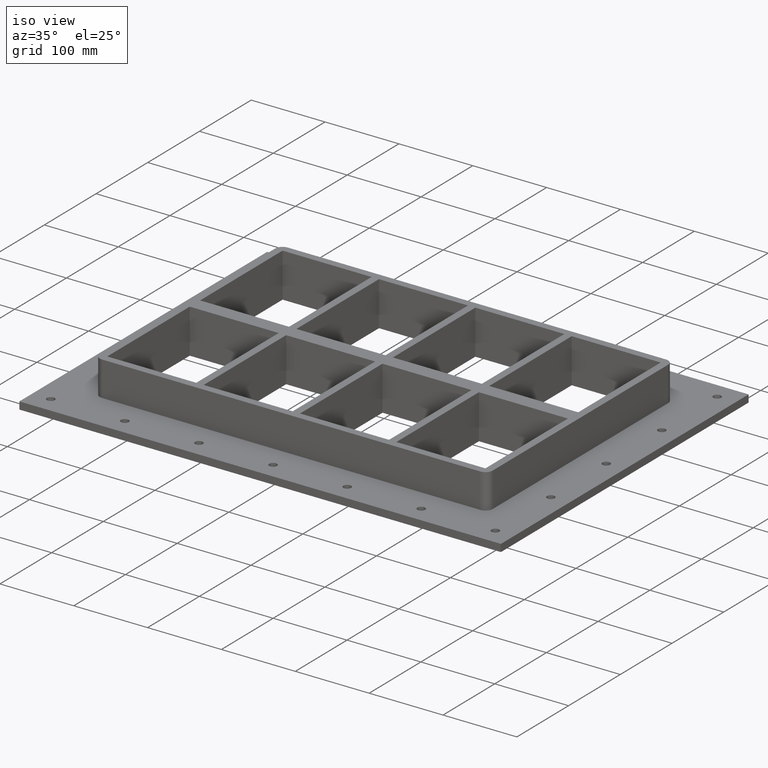
[diagram: clean part render]
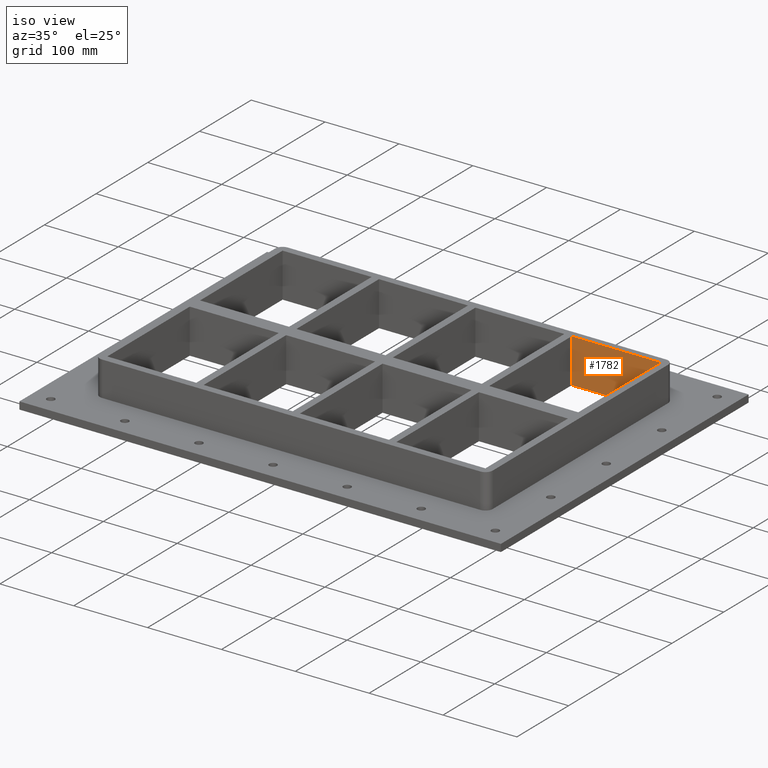
[diagram: same view with one face highlighted and labeled with its STEP entity id]
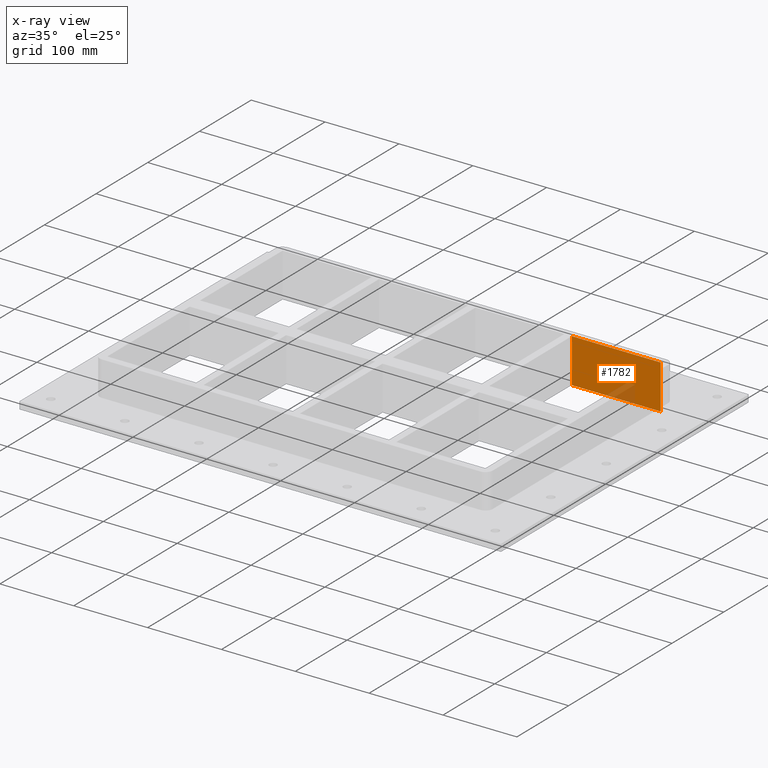
[diagram: x-ray of the same camera — body ghosted, the highlighted face saturated]
A machine part, iso view. The second image highlights one B-rep face of the part: STEP entity #1782.
The next image is the same camera in x-ray: the body ghosted, the highlighted face saturated — about 8% of this face is hidden behind the body in this view.
In plain terms, the highlighted planar face has unit normal (0, 1, 0).
Its self-contained STEP definition (entity closure, byte-faithful):
#1306=CARTESIAN_POINT('',(135.49999999999989,169.50000000000006,-30.0));
#1307=VERTEX_POINT('',#1306);
#1324=CARTESIAN_POINT('',(255.99999999999994,169.50000000000011,-30.0));
#1325=VERTEX_POINT('',#1324);
#1332=CARTESIAN_POINT('',(255.99999999999994,169.50000000000009,-30.0));
#1333=DIRECTION('',(-1.0,0.0,0.0));
#1334=VECTOR('',#1333,120.50000000000006);
#1335=LINE('',#1332,#1334);
#1336=EDGE_CURVE('',#1325,#1307,#1335,.T.);
#1693=CARTESIAN_POINT('',(135.49999999999989,169.50000000000006,30.0));
#1694=VERTEX_POINT('',#1693);
#1695=CARTESIAN_POINT('',(135.49999999999989,169.50000000000006,30.0));
#1696=DIRECTION('',(0.0,0.0,-1.0));
#1697=VECTOR('',#1696,60.0);
#1698=LINE('',#1695,#1697);
#1699=EDGE_CURVE('',#1694,#1307,#1698,.T.);
#1749=CARTESIAN_POINT('',(255.99999999999994,169.50000000000011,30.0));
#1750=VERTEX_POINT('',#1749);
#1757=CARTESIAN_POINT('',(255.99999999999994,169.50000000000011,30.0));
#1758=DIRECTION('',(0.0,0.0,-1.0));
#1759=VECTOR('',#1758,60.0);
#1760=LINE('',#1757,#1759);
#1761=EDGE_CURVE('',#1750,#1325,#1760,.T.);
#1766=CARTESIAN_POINT('',(135.49999999999989,169.50000000000006,30.0));
#1767=DIRECTION('',(0.0,1.0,0.0));
#1768=DIRECTION('',(1.0,0.0,0.0));
#1769=AXIS2_PLACEMENT_3D('',#1766,#1767,#1768);
#1770=PLANE('',#1769);
#1771=ORIENTED_EDGE('',*,*,#1336,.F.);
#1772=ORIENTED_EDGE('',*,*,#1761,.F.);
#1773=CARTESIAN_POINT('',(135.49999999999989,169.50000000000006,30.0));
#1774=DIRECTION('',(1.0,0.0,0.0));
#1775=VECTOR('',#1774,120.50000000000006);
#1776=LINE('',#1773,#1775);
#1777=EDGE_CURVE('',#1694,#1750,#1776,.T.);
#1778=ORIENTED_EDGE('',*,*,#1777,.F.);
#1779=ORIENTED_EDGE('',*,*,#1699,.T.);
#1780=EDGE_LOOP('',(#1771,#1772,#1778,#1779));
#1781=FACE_OUTER_BOUND('',#1780,.T.);
#1782=ADVANCED_FACE('',(#1781),#1770,.F.);